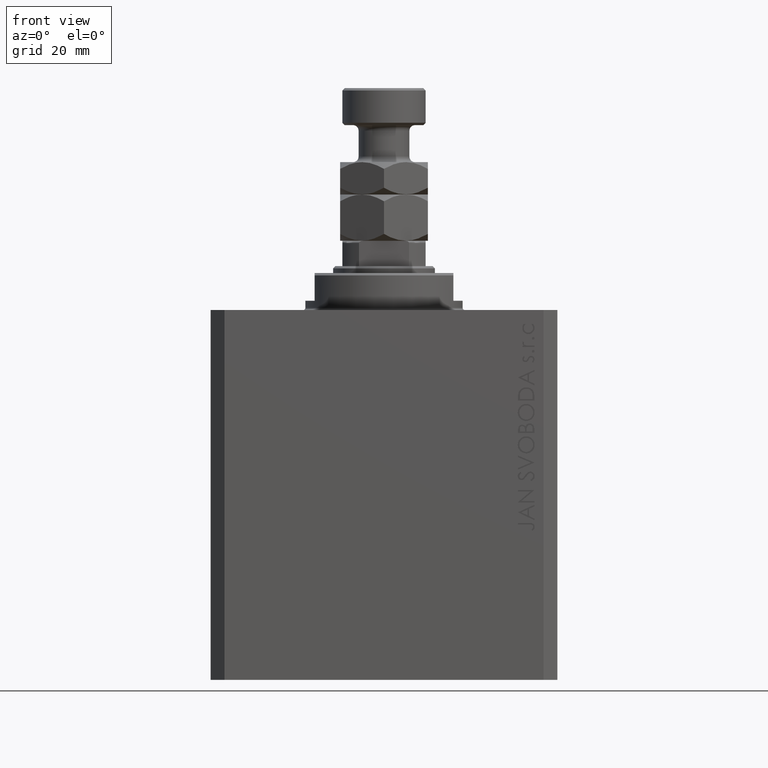
[diagram: clean part render]
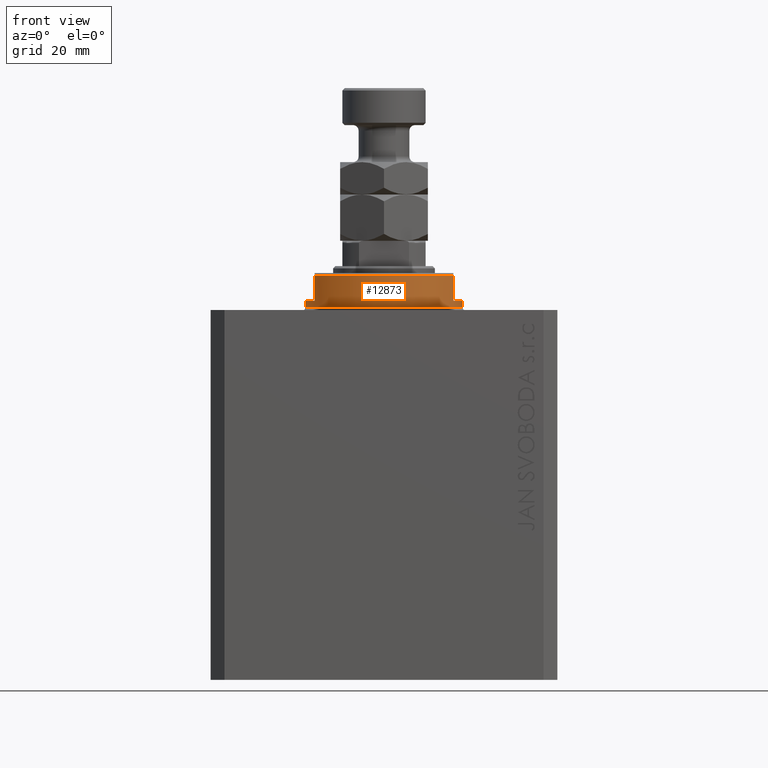
[diagram: same view with one face highlighted and labeled with its STEP entity id]
A machine part, front view. The second image highlights one B-rep face of the part: STEP entity #12873.
In plain terms, the highlighted cylindrical surface (partial cylindrical patch) has radius 17 mm, axis along (0, 0, -1).
Its self-contained STEP definition (entity closure, byte-faithful):
#745 = CARTESIAN_POINT ( 'NONE',  ( 0.000000000000000000, 0.000000000000000000, -0.5000000000000004441 ) ) ;
#897 = VERTEX_POINT ( 'NONE', #15271 ) ;
#2697 = FACE_OUTER_BOUND ( 'NONE', #38890, .T. ) ;
#3151 = ORIENTED_EDGE ( 'NONE', *, *, #11139, .F. ) ;
#4079 = CARTESIAN_POINT ( 'NONE',  ( -17.00000000000000000, 2.081899558550500280E-15, -2.000000000000000000 ) ) ;
#4182 = EDGE_CURVE ( 'NONE', #28872, #21843, #6307, .T. ) ;
#4258 = DIRECTION ( 'NONE',  ( -0.000000000000000000, -0.000000000000000000, 1.000000000000000000 ) ) ;
#4282 = AXIS2_PLACEMENT_3D ( 'NONE', #40857, #5488, #20237 ) ;
#4460 = CARTESIAN_POINT ( 'NONE',  ( -15.00000000000000000, -8.000000000000001776, -8.000000000000000000 ) ) ;
#5488 = DIRECTION ( 'NONE',  ( 0.000000000000000000, 0.000000000000000000, 1.000000000000000000 ) ) ;
#6102 = DIRECTION ( 'NONE',  ( 0.000000000000000000, 0.000000000000000000, -1.000000000000000000 ) ) ;
#6307 = CIRCLE ( 'NONE', #25131, 17.00000000000000000 ) ;
#6369 = CIRCLE ( 'NONE', #32559, 17.00000000000000000 ) ;
#8120 = CARTESIAN_POINT ( 'NONE',  ( 17.00000000000000000, 0.000000000000000000, -0.5000000000000004441 ) ) ;
#9133 = CARTESIAN_POINT ( 'NONE',  ( -17.00000000000000000, 2.081899558550500280E-15, -0.5000000000000004441 ) ) ;
#9333 = VERTEX_POINT ( 'NONE', #29005 ) ;
#9632 = CARTESIAN_POINT ( 'NONE',  ( 0.000000000000000000, 0.000000000000000000, -2.000000000000000000 ) ) ;
#9914 = ORIENTED_EDGE ( 'NONE', *, *, #29411, .F. ) ;
#11120 = VERTEX_POINT ( 'NONE', #28110 ) ;
#11139 = EDGE_CURVE ( 'NONE', #11120, #9333, #24583, .T. ) ;
#12008 = DIRECTION ( 'NONE',  ( -0.000000000000000000, -0.000000000000000000, -1.000000000000000000 ) ) ;
#12828 = DIRECTION ( 'NONE',  ( -0.000000000000000000, -0.000000000000000000, 1.000000000000000000 ) ) ;
#12873 = ADVANCED_FACE ( 'NONE', ( #2697 ), #25360, .T. ) ;
#13516 = ORIENTED_EDGE ( 'NONE', *, *, #36263, .T. ) ;
#13989 = ORIENTED_EDGE ( 'NONE', *, *, #4182, .F. ) ;
#14014 = LINE ( 'NONE', #14235, #27195 ) ;
#14235 = CARTESIAN_POINT ( 'NONE',  ( -17.00000000000000000, 2.081899558550500280E-15, -8.000000000000000000 ) ) ;
#14902 = CARTESIAN_POINT ( 'NONE',  ( -15.00000000000000000, -8.000000000000001776, -7.500000000000007105 ) ) ;
#15271 = CARTESIAN_POINT ( 'NONE',  ( 17.00000000000000000, 0.000000000000000000, -2.000000000000000000 ) ) ;
#16522 = VECTOR ( 'NONE', #38638, 1000.000000000000000 ) ;
#16582 = EDGE_CURVE ( 'NONE', #897, #28394, #37423, .T. ) ;
#18122 = DIRECTION ( 'NONE',  ( 0.000000000000000000, 0.000000000000000000, -1.000000000000000000 ) ) ;
#18376 = VERTEX_POINT ( 'NONE', #14902 ) ;
#18546 = DIRECTION ( 'NONE',  ( 1.000000000000000000, 0.000000000000000000, 0.000000000000000000 ) ) ;
#18757 = DIRECTION ( 'NONE',  ( 0.000000000000000000, 0.000000000000000000, -1.000000000000000000 ) ) ;
#19227 = LINE ( 'NONE', #4460, #22609 ) ;
#20005 = EDGE_CURVE ( 'NONE', #897, #11120, #29954, .T. ) ;
#20237 = DIRECTION ( 'NONE',  ( -1.000000000000000000, 0.000000000000000000, 0.000000000000000000 ) ) ;
#21843 = VERTEX_POINT ( 'NONE', #4079 ) ;
#22315 = DIRECTION ( 'NONE',  ( 1.000000000000000000, 0.000000000000000000, 0.000000000000000000 ) ) ;
#22392 = VECTOR ( 'NONE', #12828, 1000.000000000000000 ) ;
#22609 = VECTOR ( 'NONE', #18757, 1000.000000000000000 ) ;
#24353 = CARTESIAN_POINT ( 'NONE',  ( 15.00000000000000000, -8.000000000000001776, -8.000000000000000000 ) ) ;
#24583 = LINE ( 'NONE', #24353, #16522 ) ;
#25131 = AXIS2_PLACEMENT_3D ( 'NONE', #9632, #6102, #36758 ) ;
#25360 = CYLINDRICAL_SURFACE ( 'NONE', #39023, 17.00000000000000000 ) ;
#25625 = ORIENTED_EDGE ( 'NONE', *, *, #27140, .T. ) ;
#27140 = EDGE_CURVE ( 'NONE', #28872, #18376, #19227, .T. ) ;
#27195 = VECTOR ( 'NONE', #32276, 1000.000000000000000 ) ;
#27436 = ORIENTED_EDGE ( 'NONE', *, *, #16582, .T. ) ;
#28110 = CARTESIAN_POINT ( 'NONE',  ( 14.99999999999999645, -8.000000000000003553, -2.000000000000000000 ) ) ;
#28394 = VERTEX_POINT ( 'NONE', #8120 ) ;
#28872 = VERTEX_POINT ( 'NONE', #44793 ) ;
#29005 = CARTESIAN_POINT ( 'NONE',  ( 15.00000000000000000, -8.000000000000001776, -7.500000000000007105 ) ) ;
#29411 = EDGE_CURVE ( 'NONE', #21843, #45988, #14014, .T. ) ;
#29954 = CIRCLE ( 'NONE', #44917, 17.00000000000000000 ) ;
#30376 = ORIENTED_EDGE ( 'NONE', *, *, #45411, .T. ) ;
#30876 = CARTESIAN_POINT ( 'NONE',  ( 17.00000000000000000, 0.000000000000000000, -8.000000000000000000 ) ) ;
#32276 = DIRECTION ( 'NONE',  ( -0.000000000000000000, -0.000000000000000000, 1.000000000000000000 ) ) ;
#32559 = AXIS2_PLACEMENT_3D ( 'NONE', #745, #12008, #22315 ) ;
#32715 = CIRCLE ( 'NONE', #4282, 17.00000000000000000 ) ;
#36263 = EDGE_CURVE ( 'NONE', #28394, #45988, #6369, .T. ) ;
#36287 = ORIENTED_EDGE ( 'NONE', *, *, #20005, .F. ) ;
#36364 = CARTESIAN_POINT ( 'NONE',  ( 0.000000000000000000, 0.000000000000000000, -8.000000000000000000 ) ) ;
#36758 = DIRECTION ( 'NONE',  ( -1.000000000000000000, 0.000000000000000000, 0.000000000000000000 ) ) ;
#37423 = LINE ( 'NONE', #30876, #22392 ) ;
#38638 = DIRECTION ( 'NONE',  ( 0.000000000000000000, 0.000000000000000000, -1.000000000000000000 ) ) ;
#38890 = EDGE_LOOP ( 'NONE', ( #9914, #13989, #25625, #30376, #3151, #36287, #27436, #13516 ) ) ;
#39023 = AXIS2_PLACEMENT_3D ( 'NONE', #36364, #4258, #18546 ) ;
#39215 = DIRECTION ( 'NONE',  ( -1.000000000000000000, 0.000000000000000000, 0.000000000000000000 ) ) ;
#39438 = CARTESIAN_POINT ( 'NONE',  ( 0.000000000000000000, 0.000000000000000000, -2.000000000000000000 ) ) ;
#40857 = CARTESIAN_POINT ( 'NONE',  ( 0.000000000000000000, 0.000000000000000000, -7.500000000000007105 ) ) ;
#44793 = CARTESIAN_POINT ( 'NONE',  ( -14.99999999999999645, -8.000000000000003553, -2.000000000000000000 ) ) ;
#44917 = AXIS2_PLACEMENT_3D ( 'NONE', #39438, #18122, #39215 ) ;
#45411 = EDGE_CURVE ( 'NONE', #18376, #9333, #32715, .T. ) ;
#45988 = VERTEX_POINT ( 'NONE', #9133 ) ;